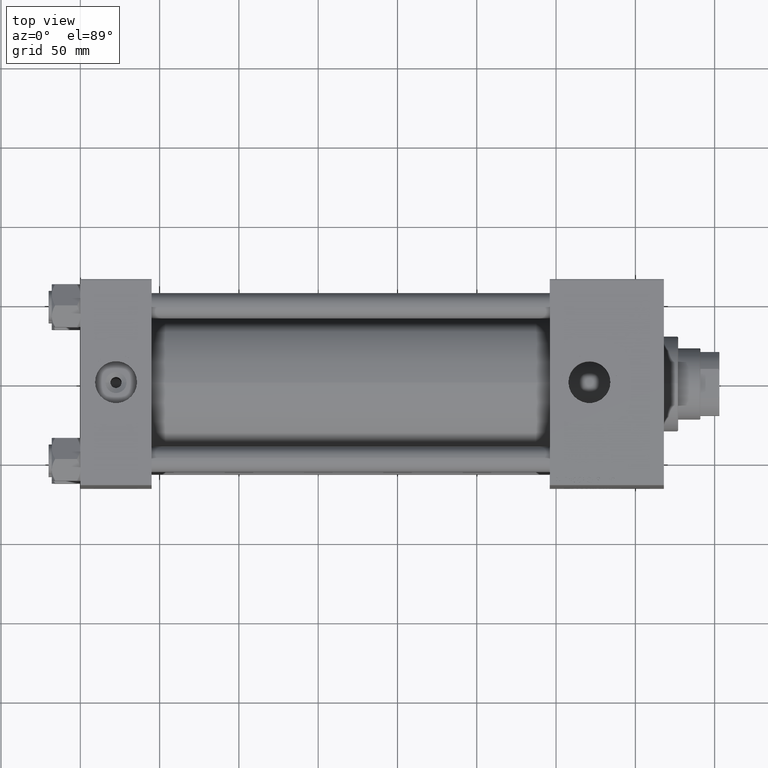
[diagram: clean part render]
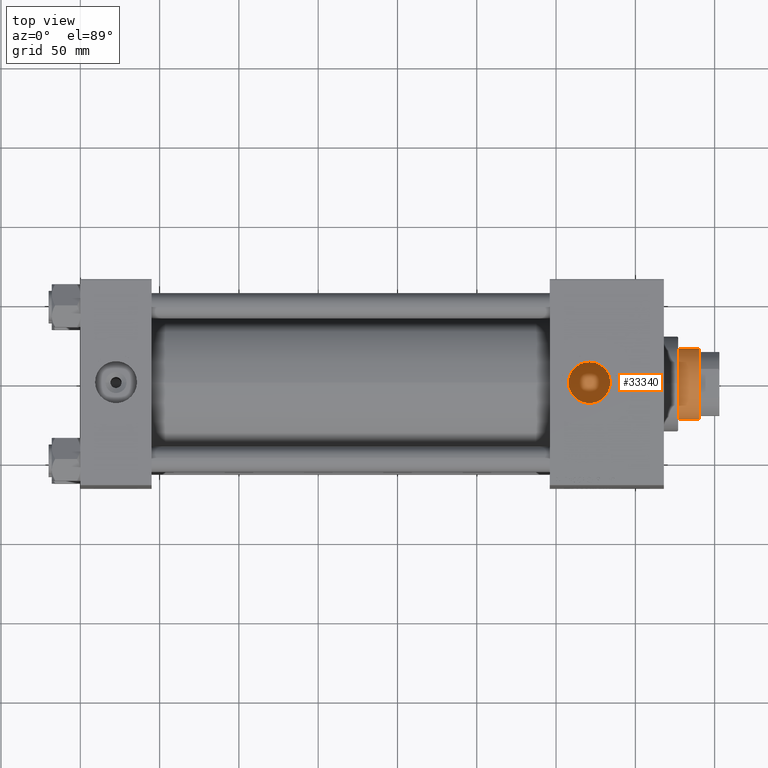
[diagram: same view with one face highlighted and labeled with its STEP entity id]
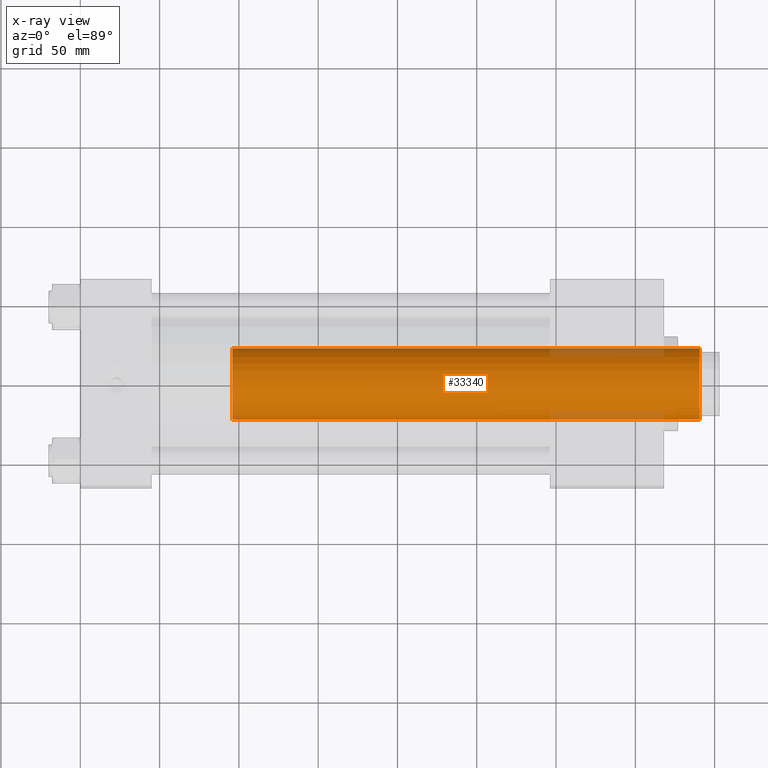
[diagram: x-ray of the same camera — body ghosted, the highlighted face saturated]
A machine part, top view. The second image highlights one B-rep face of the part: STEP entity #33340.
The next image is the same camera in x-ray: the body ghosted, the highlighted face saturated — about 6% of this face is hidden behind the body in this view.
In plain terms, the highlighted cylindrical surface (edge-blend (fillet) strip) has radius 22.5 mm, axis along (-1, 0, 0).
Its self-contained STEP definition (entity closure, byte-faithful):
#751 = VECTOR ( 'NONE', #30360, 1000.000000000000000 ) ;
#790 = DIRECTION ( 'NONE',  ( 0.000000000000000000, 0.000000000000000000, 1.000000000000000000 ) ) ;
#1565 = AXIS2_PLACEMENT_3D ( 'NONE', #49499, #2112, #10053 ) ;
#2112 = DIRECTION ( 'NONE',  ( -0.000000000000000000, -0.000000000000000000, -1.000000000000000000 ) ) ;
#7726 = LINE ( 'NONE', #23101, #33095 ) ;
#8522 = CIRCLE ( 'NONE', #22431, 22.50000000000000355 ) ;
#8737 = DIRECTION ( 'NONE',  ( 1.000000000000000000, 0.000000000000000000, 0.000000000000000000 ) ) ;
#9240 = VERTEX_POINT ( 'NONE', #40556 ) ;
#9672 = ORIENTED_EDGE ( 'NONE', *, *, #35068, .T. ) ;
#10053 = DIRECTION ( 'NONE',  ( -1.000000000000000000, 0.000000000000000000, 0.000000000000000000 ) ) ;
#10108 = CARTESIAN_POINT ( 'NONE',  ( -22.50000000000000355, 0.000000000000000000, 51.00000000000000000 ) ) ;
#11057 = DIRECTION ( 'NONE',  ( 1.000000000000000000, 0.000000000000000000, 0.000000000000000000 ) ) ;
#12226 = EDGE_CURVE ( 'NONE', #44176, #9240, #7726, .T. ) ;
#12804 = VERTEX_POINT ( 'NONE', #43771 ) ;
#14658 = CARTESIAN_POINT ( 'NONE',  ( 0.000000000000000000, 0.000000000000000000, 345.5000000000000568 ) ) ;
#17027 = EDGE_CURVE ( 'NONE', #44176, #12804, #8522, .T. ) ;
#22166 = LINE ( 'NONE', #38048, #751 ) ;
#22431 = AXIS2_PLACEMENT_3D ( 'NONE', #14658, #46149, #11057 ) ;
#23101 = CARTESIAN_POINT ( 'NONE',  ( 22.50000000000000355, 2.755455298081545172E-15, 346.0000000000000000 ) ) ;
#26949 = CARTESIAN_POINT ( 'NONE',  ( 22.50000000000000355, 2.755455298081545172E-15, 345.5000000000000568 ) ) ;
#28573 = FACE_OUTER_BOUND ( 'NONE', #43252, .T. ) ;
#30360 = DIRECTION ( 'NONE',  ( -0.000000000000000000, -0.000000000000000000, -1.000000000000000000 ) ) ;
#30500 = ORIENTED_EDGE ( 'NONE', *, *, #12226, .F. ) ;
#32169 = VERTEX_POINT ( 'NONE', #10108 ) ;
#33095 = VECTOR ( 'NONE', #34636, 1000.000000000000000 ) ;
#33340 = ADVANCED_FACE ( 'NONE', ( #28573 ), #41802, .T. ) ;
#34636 = DIRECTION ( 'NONE',  ( -0.000000000000000000, -0.000000000000000000, -1.000000000000000000 ) ) ;
#35068 = EDGE_CURVE ( 'NONE', #12804, #32169, #22166, .T. ) ;
#37796 = ORIENTED_EDGE ( 'NONE', *, *, #17027, .T. ) ;
#38048 = CARTESIAN_POINT ( 'NONE',  ( -22.50000000000000355, 0.000000000000000000, 346.0000000000000000 ) ) ;
#40556 = CARTESIAN_POINT ( 'NONE',  ( 22.50000000000000355, 2.755455298081545172E-15, 51.00000000000000000 ) ) ;
#41802 = CYLINDRICAL_SURFACE ( 'NONE', #1565, 22.50000000000000355 ) ;
#43252 = EDGE_LOOP ( 'NONE', ( #30500, #37796, #9672, #48156 ) ) ;
#43771 = CARTESIAN_POINT ( 'NONE',  ( -22.50000000000000355, 0.000000000000000000, 345.5000000000000568 ) ) ;
#44174 = AXIS2_PLACEMENT_3D ( 'NONE', #48185, #790, #8737 ) ;
#44176 = VERTEX_POINT ( 'NONE', #26949 ) ;
#44739 = EDGE_CURVE ( 'NONE', #32169, #9240, #49123, .T. ) ;
#46149 = DIRECTION ( 'NONE',  ( 0.000000000000000000, 0.000000000000000000, -1.000000000000000000 ) ) ;
#48156 = ORIENTED_EDGE ( 'NONE', *, *, #44739, .T. ) ;
#48185 = CARTESIAN_POINT ( 'NONE',  ( 0.000000000000000000, 0.000000000000000000, 51.00000000000000000 ) ) ;
#49123 = CIRCLE ( 'NONE', #44174, 22.50000000000000355 ) ;
#49499 = CARTESIAN_POINT ( 'NONE',  ( 0.000000000000000000, 0.000000000000000000, 346.0000000000000000 ) ) ;